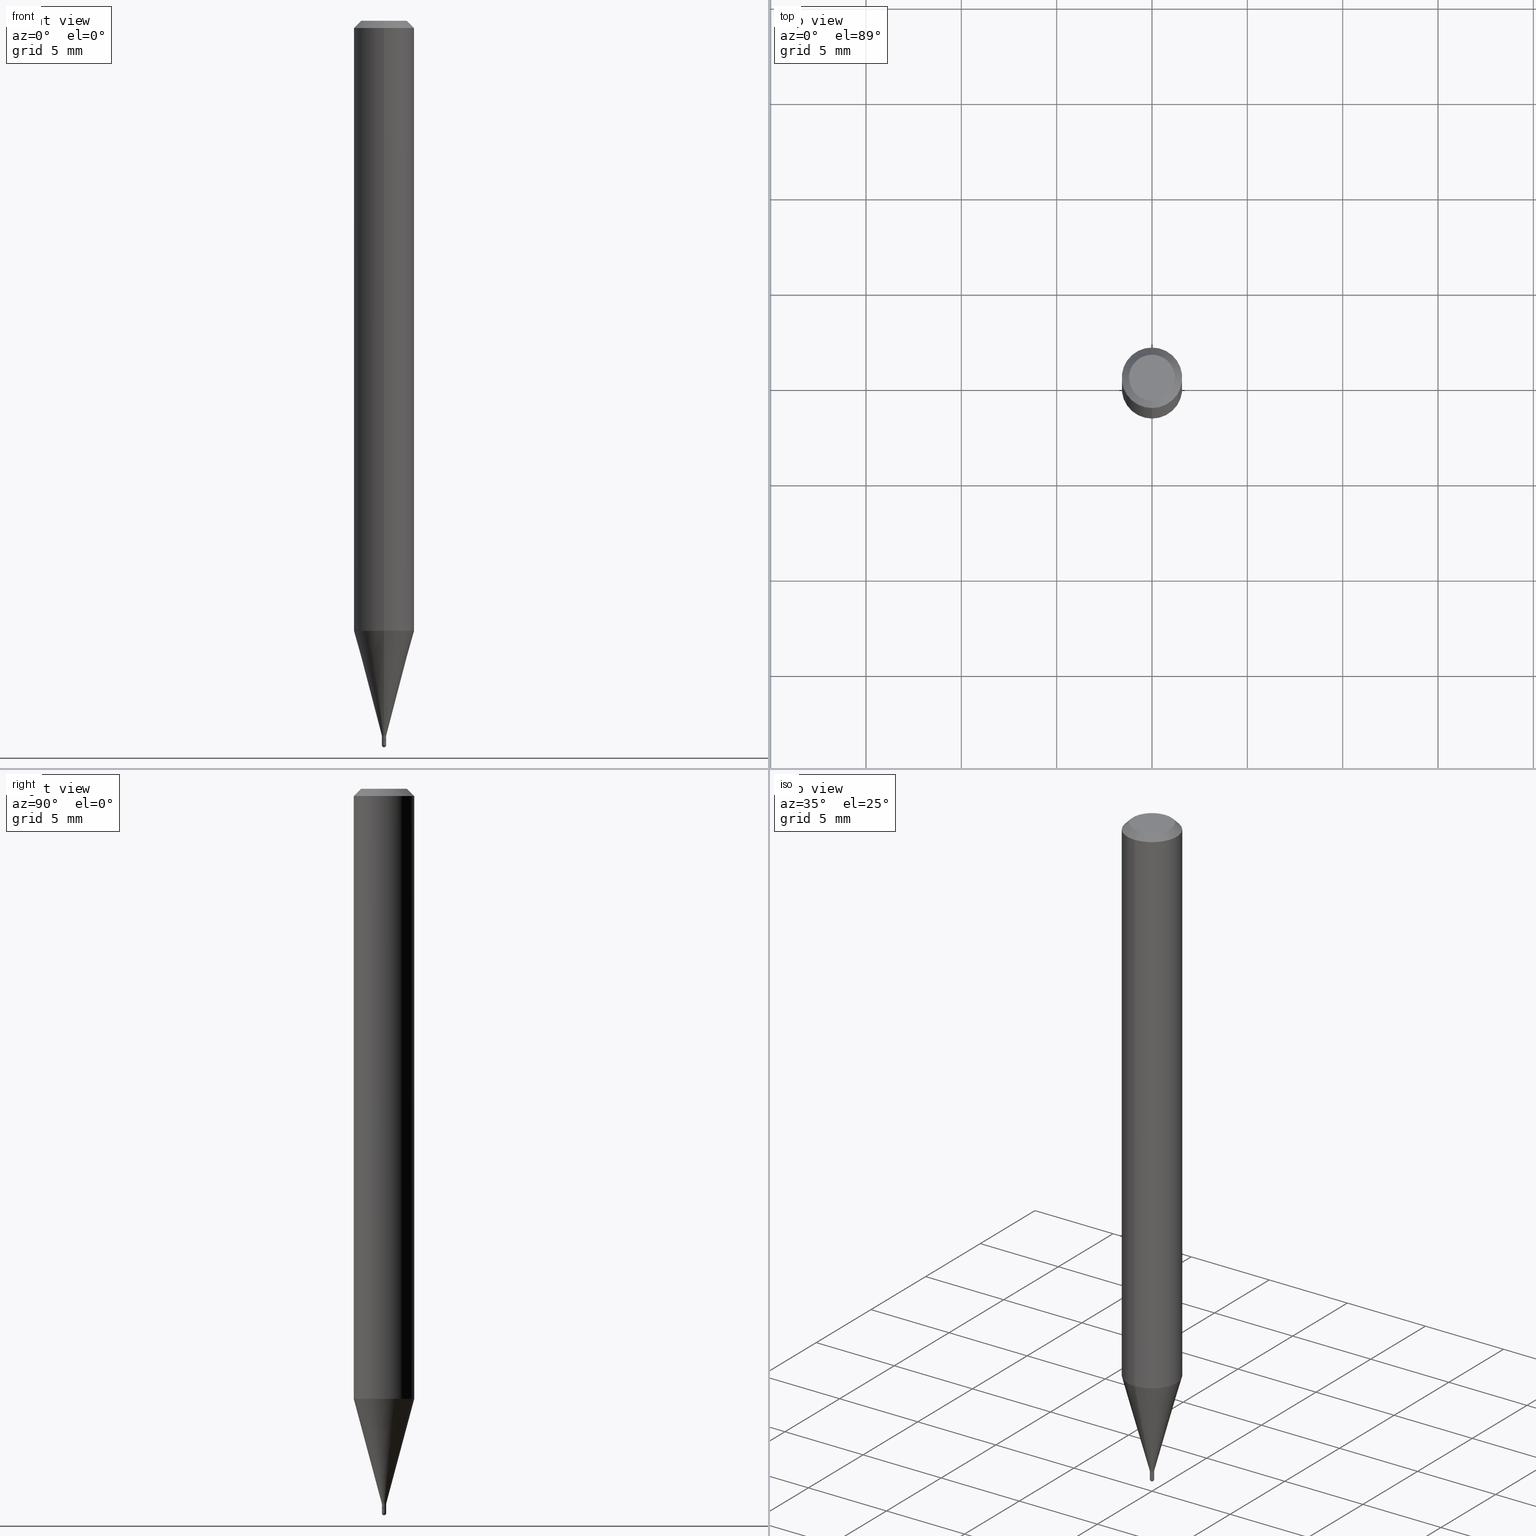
[diagram: canonical four-view strip — front | top / right | iso, engineering-drawing reading convention]
A machine part, canonical four-view strip (front | top / right | iso — engineering-drawing reading convention). The complete STEP part file that produces these views, byte-faithful:
ISO-10303-21;
HEADER;
FILE_DESCRIPTION (( 'STEP AP203' ),
    '1' );
FILE_NAME ('03033.STEP',
    '2024-03-08T18:01:57',
    ( '' ),
    ( '' ),
    'SwSTEP 2.0',
    'SolidWorks 2023',
    '' );
FILE_SCHEMA (( 'CONFIG_CONTROL_DESIGN' ));
ENDSEC;

DATA;
#1 = CIRCLE ( 'NONE', #16, 0.04749999999999999362 ) ;
#2 = APPROVAL_ROLE ( '' ) ;
#3 = FACE_OUTER_BOUND ( 'NONE', #34, .T. ) ;
#4 = COORDINATED_UNIVERSAL_TIME_OFFSET ( 5, 0, .BEHIND. ) ;
#5 = DIRECTION ( 'NONE',  ( 1.000000000000000000, -6.982962677686265922E-15, 4.883557194083112340E-29 ) ) ;
#6 = DIRECTION ( 'NONE',  ( -2.445468806185136597E-29, 3.491481338843145583E-15, 1.000000000000000000 ) ) ;
#7 = ORIENTED_EDGE ( 'NONE', *, *, #348, .T. ) ;
#8 = AXIS2_PLACEMENT_3D ( 'NONE', #317, #271, #91 ) ;
#9 = CC_DESIGN_PERSON_AND_ORGANIZATION_ASSIGNMENT ( #228, #263, ( #141 ) ) ;
#10 = ORGANIZATION ( 'UNSPECIFIED', 'UNSPECIFIED', '' ) ;
#11 = FACE_OUTER_BOUND ( 'NONE', #412, .T. ) ;
#12 = CARTESIAN_POINT ( 'NONE',  ( 0.000000000000000000, 0.000000000000000000, 0.000000000000000000 ) ) ;
#13 = EDGE_CURVE ( 'NONE', #257, #249, #287, .T. ) ;
#14 = CIRCLE ( 'NONE', #487, 0.004499999999999999660 ) ;
#15 = DIRECTION ( 'NONE',  ( 1.839019923739601499E-15, 0.2588190451025251249, 0.9659258262890670910 ) ) ;
#16 = AXIS2_PLACEMENT_3D ( 'NONE', #61, #449, #178 ) ;
#17 = LOCAL_TIME ( 13, 1, 57.00000000000000000, #195 ) ;
#18 = EDGE_CURVE ( 'NONE', #341, #297, #497, .T. ) ;
#19 = CARTESIAN_POINT ( 'NONE',  ( -4.364351673553608052E-16, -0.06250000000000439926, -1.259541053161005397 ) ) ;
#20 = ORIENTED_EDGE ( 'NONE', *, *, #70, .F. ) ;
#21 = DIRECTION ( 'NONE',  ( -2.445480569901482544E-29, 3.491464492531789239E-15, 1.000000000000000000 ) ) ;
#22 = ADVANCED_FACE ( 'NONE', ( #42 ), #78, .T. ) ;
#23 = VERTEX_POINT ( 'NONE', #504 ) ;
#24 = DIRECTION ( 'NONE',  ( -2.445480569901482544E-29, 3.491464492531789239E-15, 1.000000000000000000 ) ) ;
#25 = CC_DESIGN_DATE_AND_TIME_ASSIGNMENT ( #225, #390, ( #258 ) ) ;
#26 = ORIENTED_EDGE ( 'NONE', *, *, #89, .F. ) ;
#27 = CIRCLE ( 'NONE', #445, 0.004499999999999999660 ) ;
#28 = CARTESIAN_POINT ( 'NONE',  ( 0.004499999999999999660, -5.219764601570503141E-15, -1.486000000000000210 ) ) ;
#29 = VERTEX_POINT ( 'NONE', #231 ) ;
#30 = DIRECTION ( 'NONE',  ( 6.982962677686265922E-15, 1.000000000000000000, -3.491464492531789634E-15 ) ) ;
#31 = VERTEX_POINT ( 'NONE', #386 ) ;
#32 = EDGE_CURVE ( 'NONE', #257, #297, #475, .T. ) ;
#33 = CARTESIAN_POINT ( 'NONE',  ( 0.004499999999999999660, -3.142333204958819823E-17, 2.194279549108170704E-31 ) ) ;
#34 = EDGE_LOOP ( 'NONE', ( #219, #304, #84, #183 ) ) ;
#35 = CIRCLE ( 'NONE', #8, 0.004000000000000000083 ) ;
#36 = VECTOR ( 'NONE', #246, 39.37007874015748143 ) ;
#37 = EDGE_CURVE ( 'NONE', #29, #186, #155, .T. ) ;
#38 = PERSON_AND_ORGANIZATION ( #194, #10 ) ;
#39 = CARTESIAN_POINT ( 'NONE',  ( 3.668220854852165434E-31, -5.237196738797599944E-17, -0.01499999999999976179 ) ) ;
#40 = PLANE ( 'NONE',  #235 ) ;
#41 = EDGE_CURVE ( 'NONE', #23, #254, #153, .T. ) ;
#42 = FACE_OUTER_BOUND ( 'NONE', #295, .T. ) ;
#43 = DATE_AND_TIME ( #46, #483 ) ;
#44 = CARTESIAN_POINT ( 'NONE',  ( 4.440892098500935790E-16, 0.06249999999999995143, -0.01499999999999997863 ) ) ;
#45 = EDGE_CURVE ( 'NONE', #455, #117, #14, .T. ) ;
#46 = CALENDAR_DATE ( 2024, 8, 3 ) ;
#47 = DIRECTION ( 'NONE',  ( 1.000000000000000000, -6.982962677686225690E-15, 0.000000000000000000 ) ) ;
#48 = ORIENTED_EDGE ( 'NONE', *, *, #41, .F. ) ;
#49 = EDGE_CURVE ( 'NONE', #254, #106, #261, .T. ) ;
#50 = DATE_AND_TIME ( #366, #58 ) ;
#51 = DIRECTION ( 'NONE',  ( -6.982962677686265133E-15, -1.000000000000000000, 3.491464492531789239E-15 ) ) ;
#52 = VERTEX_POINT ( 'NONE', #196 ) ;
#53 = ORIENTED_EDGE ( 'NONE', *, *, #353, .F. ) ;
#54 = COORDINATED_UNIVERSAL_TIME_OFFSET ( 5, 0, .BEHIND. ) ;
#55 = CARTESIAN_POINT ( 'NONE',  ( 3.019806626984031964E-17, 0.003999999999994811525, -1.486000000000000210 ) ) ;
#56 = VECTOR ( 'NONE', #282, 39.37007874015748143 ) ;
#57 = AXIS2_PLACEMENT_3D ( 'NONE', #466, #385, #315 ) ;
#58 = LOCAL_TIME ( 13, 1, 57.00000000000000000, #54 ) ;
#59 = CARTESIAN_POINT ( 'NONE',  ( -0.004499999999999999660, -5.172951382771215824E-15, -1.486000000000000210 ) ) ;
#60 = LINE ( 'NONE', #416, #36 ) ;
#61 = CARTESIAN_POINT ( 'NONE',  ( -5.856628655322691539E-45, 8.361632984402382605E-31, 2.394878424880974857E-16 ) ) ;
#62 = ORIENTED_EDGE ( 'NONE', *, *, #82, .F. ) ;
#63 = ADVANCED_FACE ( 'NONE', ( #472 ), #277, .T. ) ;
#64 = AXIS2_PLACEMENT_3D ( 'NONE', #356, #469, #313 ) ;
#65 = CARTESIAN_POINT ( 'NONE',  ( 3.668220854852165434E-31, -5.237196738797599944E-17, -0.01499999999999976179 ) ) ;
#66 = AXIS2_PLACEMENT_3D ( 'NONE', #409, #216, #459 ) ;
#67 = EDGE_LOOP ( 'NONE', ( #354, #451, #285, #99, #217 ) ) ;
#68 = CYLINDRICAL_SURFACE ( 'NONE', #87, 0.06250000000000000000 ) ;
#69 = ORIENTED_EDGE ( 'NONE', *, *, #502, .T. ) ;
#70 = EDGE_CURVE ( 'NONE', #376, #106, #424, .T. ) ;
#71 = CARTESIAN_POINT ( 'NONE',  ( 3.633984126873604079E-29, -5.188316235902239695E-15, -1.486000000000000210 ) ) ;
#72 = ORIENTED_EDGE ( 'NONE', *, *, #367, .T. ) ;
#73 = AXIS2_PLACEMENT_3D ( 'NONE', #294, #494, #248 ) ;
#74 = ORIENTED_EDGE ( 'NONE', *, *, #345, .T. ) ;
#75 = DIRECTION ( 'NONE',  ( -6.982962677686265922E-15, -1.000000000000000000, 0.000000000000000000 ) ) ;
#76 = ORIENTED_EDGE ( 'NONE', *, *, #32, .T. ) ;
#77 = ADVANCED_FACE ( 'NONE', ( #510 ), #158, .T. ) ;
#78 = CYLINDRICAL_SURFACE ( 'NONE', #170, 0.004499999999999999660 ) ;
#79 = CALENDAR_DATE ( 2024, 8, 3 ) ;
#80 = CARTESIAN_POINT ( 'NONE',  ( 3.609529321174588321E-29, -5.153401590976920012E-15, -1.475999999999999979 ) ) ;
#81 = CONICAL_SURFACE ( 'NONE', #73, 0.004000000000000000083, 0.7853981633974739252 ) ;
#82 = EDGE_CURVE ( 'NONE', #52, #134, #128, .T. ) ;
#83 = DIRECTION ( 'NONE',  ( -2.445480569901482544E-29, 3.491464492531789634E-15, 1.000000000000000000 ) ) ;
#84 = ORIENTED_EDGE ( 'NONE', *, *, #470, .F. ) ;
#85 = FACE_OUTER_BOUND ( 'NONE', #365, .T. ) ;
#86 = CLOSED_SHELL ( 'NONE', ( #238, #406, #240, #114, #456, #135, #278, #63, #450, #336, #442, #293 ) ) ;
#87 = AXIS2_PLACEMENT_3D ( 'NONE', #105, #496, #146 ) ;
#88 = DIRECTION ( 'NONE',  ( -2.445480569901482544E-29, 3.491464492531789239E-15, 1.000000000000000000 ) ) ;
#89 = EDGE_CURVE ( 'NONE', #159, #221, #35, .T. ) ;
#90 = ORIENTED_EDGE ( 'NONE', *, *, #434, .F. ) ;
#91 = DIRECTION ( 'NONE',  ( -6.982962677686265133E-15, -1.000000000000000000, 0.000000000000000000 ) ) ;
#92 = LINE ( 'NONE', #169, #163 ) ;
#93 = AXIS2_PLACEMENT_3D ( 'NONE', #485, #241, #127 ) ;
#94 = VECTOR ( 'NONE', #307, 39.37007874015748143 ) ;
#95 = DIRECTION ( 'NONE',  ( -4.851104656540964275E-15, -0.7071067811865500152, -0.7071067811865450192 ) ) ;
#96 = DIRECTION ( 'NONE',  ( -2.445468806185136597E-29, 3.491481338843145583E-15, 1.000000000000000000 ) ) ;
#97 = ORIENTED_EDGE ( 'NONE', *, *, #49, .F. ) ;
#98 = FACE_OUTER_BOUND ( 'NONE', #67, .T. ) ;
#99 = ORIENTED_EDGE ( 'NONE', *, *, #502, .F. ) ;
#100 = VECTOR ( 'NONE', #83, 39.37007874015748143 ) ;
#101 = DIRECTION ( 'NONE',  ( -6.982962677686265922E-15, -1.000000000000000000, 4.370956789862821150E-15 ) ) ;
#102 = CIRCLE ( 'NONE', #389, 0.004499999999999999660 ) ;
#103 = ORIENTED_EDGE ( 'NONE', *, *, #427, .T. ) ;
#104 = ADVANCED_FACE ( 'NONE', ( #11 ), #203, .T. ) ;
#105 = CARTESIAN_POINT ( 'NONE',  ( 0.000000000000000000, 0.000000000000000000, 0.000000000000000000 ) ) ;
#106 = VERTEX_POINT ( 'NONE', #486 ) ;
#107 = DIRECTION ( 'NONE',  ( -6.982962677686265922E-15, -1.000000000000000000, 3.491464492531789634E-15 ) ) ;
#108 = ORIENTED_EDGE ( 'NONE', *, *, #110, .F. ) ;
#109 = DIRECTION ( 'NONE',  ( 0.000000000000000000, 0.000000000000000000, 1.000000000000000000 ) ) ;
#110 = EDGE_CURVE ( 'NONE', #249, #341, #205, .T. ) ;
#111 = ORIENTED_EDGE ( 'NONE', *, *, #45, .T. ) ;
#112 = SECURITY_CLASSIFICATION ( '', '', #283 ) ;
#113 = LENGTH_MEASURE_WITH_UNIT ( LENGTH_MEASURE( 0.02539999999999999897 ), #223 );
#114 = ADVANCED_FACE ( 'NONE', ( #321 ), #327, .T. ) ;
#115 = DIRECTION ( 'NONE',  ( 2.445480569901482544E-29, -3.491464492531789239E-15, -1.000000000000000000 ) ) ;
#116 = LINE ( 'NONE', #33, #94 ) ;
#117 = VERTEX_POINT ( 'NONE', #59 ) ;
#118 = CARTESIAN_POINT ( 'NONE',  ( 4.440892098500625669E-16, 0.06250000000000000000, -2.182165307832368028E-16 ) ) ;
#119 = CIRCLE ( 'NONE', #316, 0.004499999999999923332 ) ;
#120 = APPROVAL ( #422, 'UNSPECIFIED' ) ;
#121 = APPROVAL_PERSON_ORGANIZATION ( #323, #160, #2 ) ;
#122 = APPLICATION_CONTEXT ( 'configuration controlled 3d designs of mechanical parts and assemblies' ) ;
#123 = PRODUCT_DEFINITION_SHAPE ( 'NONE', 'NONE',  #258 ) ;
#124 = DIRECTION ( 'NONE',  ( -6.982962677686265922E-15, -1.000000000000000000, 0.000000000000000000 ) ) ;
#125 = APPROVAL_STATUS ( 'not_yet_approved' ) ;
#126 = CARTESIAN_POINT ( 'NONE',  ( 3.197442310924042993E-17, 0.004499999999994687069, -1.495500000000000496 ) ) ;
#127 = DIRECTION ( 'NONE',  ( -6.982962677686265922E-15, -1.000000000000000000, 0.000000000000000000 ) ) ;
#128 = CIRCLE ( 'NONE', #251, 0.004499999999999819249 ) ;
#129 = VECTOR ( 'NONE', #377, 39.37007874015748143 ) ;
#130 = DIRECTION ( 'NONE',  ( -2.445468806185136597E-29, 3.491481338843145583E-15, 1.000000000000000000 ) ) ;
#131 = ORIENTED_EDGE ( 'NONE', *, *, #438, .T. ) ;
#132 = DIMENSIONAL_EXPONENTS ( 1.000000000000000000, 0.000000000000000000, 0.000000000000000000, 0.000000000000000000, 0.000000000000000000, 0.000000000000000000, 0.000000000000000000 ) ;
#133 = CARTESIAN_POINT ( 'NONE',  ( 3.657198599649872484E-29, -5.221510342239925433E-15, -1.495500000000000496 ) ) ;
#134 = VERTEX_POINT ( 'NONE', #126 ) ;
#135 = ADVANCED_FACE ( 'NONE', ( #85 ), #242, .T. ) ;
#136 = CARTESIAN_POINT ( 'NONE',  ( 3.142333204962453513E-17, 0.004499999999994811102, -1.486000000000000210 ) ) ;
#137 = ORIENTED_EDGE ( 'NONE', *, *, #298, .T. ) ;
#138 = AXIS2_PLACEMENT_3D ( 'NONE', #480, #274, #47 ) ;
#139 = LINE ( 'NONE', #291, #129 ) ;
#140 = ORIENTED_EDGE ( 'NONE', *, *, #302, .F. ) ;
#141 = PRODUCT ( '03033', '03033', '', ( #266 ) ) ;
#142 = FACE_OUTER_BOUND ( 'NONE', #419, .T. ) ;
#143 = FACE_OUTER_BOUND ( 'NONE', #189, .T. ) ;
#144 = CC_DESIGN_PERSON_AND_ORGANIZATION_ASSIGNMENT ( #402, #236, ( #213 ) ) ;
#145 = VERTEX_POINT ( 'NONE', #207 ) ;
#146 = DIRECTION ( 'NONE',  ( -6.982962677686265922E-15, -1.000000000000000000, 3.491464492531788845E-15 ) ) ;
#147 = AXIS2_PLACEMENT_3D ( 'NONE', #12, #149, #300 ) ;
#148 = ORIENTED_EDGE ( 'NONE', *, *, #255, .F. ) ;
#149 = DIRECTION ( 'NONE',  ( -2.445480569901482544E-29, 3.491464492531789239E-15, 1.000000000000000000 ) ) ;
#150 = ORIENTED_EDGE ( 'NONE', *, *, #82, .T. ) ;
#151 = EDGE_CURVE ( 'NONE', #159, #257, #92, .T. ) ;
#152 = APPLICATION_PROTOCOL_DEFINITION ( 'international standard', 'config_control_design', 1994, #197 ) ;
#153 = LINE ( 'NONE', #118, #369 ) ;
#154 = FACE_OUTER_BOUND ( 'NONE', #267, .T. ) ;
#155 = CIRCLE ( 'NONE', #420, 0.04749999999999999362 ) ;
#156 = DIRECTION ( 'NONE',  ( -2.445480569901482544E-29, 3.491464492531789239E-15, 1.000000000000000000 ) ) ;
#157 = APPROVAL_ROLE ( '' ) ;
#158 = SPHERICAL_SURFACE ( 'NONE', #64, 0.004499999999999819249 ) ;
#159 = VERTEX_POINT ( 'NONE', #368 ) ;
#160 = APPROVAL ( #125, 'UNSPECIFIED' ) ;
#161 = CARTESIAN_POINT ( 'NONE',  ( 3.609529321174588321E-29, -5.153401590976920012E-15, -1.475999999999999979 ) ) ;
#162 = DIRECTION ( 'NONE',  ( 7.105427357601000281E-15, 1.000000000000000000, 0.000000000000000000 ) ) ;
#163 = VECTOR ( 'NONE', #232, 39.37007874015748143 ) ;
#164 = APPROVAL_ROLE ( '' ) ;
#165 = CARTESIAN_POINT ( 'NONE',  ( 3.633984126873604079E-29, -5.188316235902239695E-15, -1.486000000000000210 ) ) ;
#166 = EDGE_CURVE ( 'NONE', #281, #31, #252, .T. ) ;
#167 = COORDINATED_UNIVERSAL_TIME_OFFSET ( 5, 0, .BEHIND. ) ;
#168 = DIRECTION ( 'NONE',  ( -6.982962677686265133E-15, -1.000000000000000000, 0.000000000000000000 ) ) ;
#169 = CARTESIAN_POINT ( 'NONE',  ( -2.793185071070872476E-17, -0.004000000000005187774, -1.486000000000000210 ) ) ;
#170 = AXIS2_PLACEMENT_3D ( 'NONE', #227, #309, #190 ) ;
#171 = EDGE_LOOP ( 'NONE', ( #131, #408, #334, #20 ) ) ;
#172 = CIRCLE ( 'NONE', #499, 0.004499999999999924200 ) ;
#173 = CARTESIAN_POINT ( 'NONE',  ( -3.773273898774340269E-16, -0.04749999999999999362, 4.053324058833574509E-16 ) ) ;
#174 = CARTESIAN_POINT ( 'NONE',  ( 0.000000000000000000, 0.000000000000000000, 0.000000000000000000 ) ) ;
#175 = CC_DESIGN_PERSON_AND_ORGANIZATION_ASSIGNMENT ( #275, #358, ( #213 ) ) ;
#176 = CARTESIAN_POINT ( 'NONE',  ( -3.142333204955156550E-17, -0.004500000000005076328, -1.475999999999999979 ) ) ;
#177 = AXIS2_PLACEMENT_3D ( 'NONE', #136, #443, #199 ) ;
#178 = DIRECTION ( 'NONE',  ( -6.982962677686266711E-15, -1.000000000000000000, 3.491464492531789634E-15 ) ) ;
#179 = ORIENTED_EDGE ( 'NONE', *, *, #151, .F. ) ;
#180 = CARTESIAN_POINT ( 'NONE',  ( 2.380318164796668072E-16, 0.004499999999994770336, -1.475999999999999979 ) ) ;
#181 = ORIENTED_EDGE ( 'NONE', *, *, #18, .T. ) ;
#182 = DIRECTION ( 'NONE',  ( -6.982962677686265922E-15, -1.000000000000000000, 3.483106191921935554E-15 ) ) ;
#183 = ORIENTED_EDGE ( 'NONE', *, *, #32, .F. ) ;
#184 = DIRECTION ( 'NONE',  ( 1.000000000000000000, -6.982962677686225690E-15, 0.000000000000000000 ) ) ;
#185 = AXIS2_PLACEMENT_3D ( 'NONE', #188, #387, #383 ) ;
#186 = VERTEX_POINT ( 'NONE', #173 ) ;
#187 = ORIENTED_EDGE ( 'NONE', *, *, #367, .F. ) ;
#188 = CARTESIAN_POINT ( 'NONE',  ( 3.609529321174588321E-29, -5.153401590976920012E-15, -1.475999999999999979 ) ) ;
#189 = EDGE_LOOP ( 'NONE', ( #48, #260, #343, #97 ) ) ;
#190 = DIRECTION ( 'NONE',  ( 1.000000000000000000, -6.982962677686266711E-15, 4.876176775795935232E-29 ) ) ;
#191 = CIRCLE ( 'NONE', #262, 0.004000000000000000083 ) ;
#192 = CARTESIAN_POINT ( 'NONE',  ( -4.364351673553916201E-16, -0.06250000000000000000, 2.182165307832368028E-16 ) ) ;
#193 = DIRECTION ( 'NONE',  ( -2.445480569901482544E-29, 3.491464492531789634E-15, 1.000000000000000000 ) ) ;
#194 = PERSON ( 'UNSPECIFIED', 'UNSPECIFIED', 'UNSPECIFIED', ('UNSPECIFIED'), ('UNSPECIFIED'), ('UNSPECIFIED') ) ;
#195 = COORDINATED_UNIVERSAL_TIME_OFFSET ( 5, 0, .BEHIND. ) ;
#196 = CARTESIAN_POINT ( 'NONE',  ( 3.667625972032509691E-29, -5.238048644854142216E-15, -1.500000000000000222 ) ) ;
#197 = APPLICATION_CONTEXT ( 'configuration controlled 3d designs of mechanical parts and assemblies' ) ;
#198 = DATE_TIME_ROLE ( 'classification_date' ) ;
#199 = DIRECTION ( 'NONE',  ( -1.000000000000000000, 6.982962677686265922E-15, -4.876176775795935793E-29 ) ) ;
#200 = EDGE_CURVE ( 'NONE', #145, #281, #457, .T. ) ;
#201 = AXIS2_PLACEMENT_3D ( 'NONE', #418, #109, #430 ) ;
#202 = CARTESIAN_POINT ( 'NONE',  ( -4.287811248607203282E-16, -0.06250000000000005551, -0.01499999999999954321 ) ) ;
#203 = SPHERICAL_SURFACE ( 'NONE', #428, 0.004499999999999819249 ) ;
#204 = EDGE_CURVE ( 'NONE', #186, #106, #440, .T. ) ;
#205 = LINE ( 'NONE', #403, #56 ) ;
#206 = ADVANCED_FACE ( 'NONE', ( #362 ), #284, .F. ) ;
#207 = CARTESIAN_POINT ( 'NONE',  ( -0.004499999999999999660, -5.172951382771215824E-15, -1.495500000000000496 ) ) ;
#208 = DIRECTION ( 'NONE',  ( -1.000000000000000000, 6.982962677686265922E-15, -4.883557194083112340E-29 ) ) ;
#209 = DIRECTION ( 'NONE',  ( -6.982962677686265922E-15, -1.000000000000000000, 0.000000000000000000 ) ) ;
#210 = ORIENTED_EDGE ( 'NONE', *, *, #37, .F. ) ;
#211 = AXIS2_PLACEMENT_3D ( 'NONE', #394, #433, #124 ) ;
#212 = VECTOR ( 'NONE', #401, 39.37007874015748854 ) ;
#213 = PRODUCT_DEFINITION_FORMATION_WITH_SPECIFIED_SOURCE ( 'ANY', '', #141, .NOT_KNOWN. ) ;
#214 = DIRECTION ( 'NONE',  ( -2.445480569901482544E-29, 3.491464492531789239E-15, 1.000000000000000000 ) ) ;
#215 = ORIENTED_EDGE ( 'NONE', *, *, #37, .T. ) ;
#216 = DIRECTION ( 'NONE',  ( -2.445468806185136597E-29, 3.491481338843145583E-15, 1.000000000000000000 ) ) ;
#217 = ORIENTED_EDGE ( 'NONE', *, *, #371, .T. ) ;
#218 = DIRECTION ( 'NONE',  ( -2.445480569901482544E-29, 3.491464492531789239E-15, 1.000000000000000000 ) ) ;
#219 = ORIENTED_EDGE ( 'NONE', *, *, #13, .T. ) ;
#220 = AXIS2_PLACEMENT_3D ( 'NONE', #65, #218, #182 ) ;
#221 = VERTEX_POINT ( 'NONE', #55 ) ;
#222 = EDGE_LOOP ( 'NONE', ( #108, #103, #76, #462 ) ) ;
#223 =( LENGTH_UNIT ( ) NAMED_UNIT ( * ) SI_UNIT ( $, .METRE. ) );
#224 = DIRECTION ( 'NONE',  ( -2.445480569901482544E-29, 3.491464492531789239E-15, 1.000000000000000000 ) ) ;
#225 = DATE_AND_TIME ( #79, #17 ) ;
#226 = AXIS2_PLACEMENT_3D ( 'NONE', #388, #305, #392 ) ;
#227 = CARTESIAN_POINT ( 'NONE',  ( 0.000000000000000000, 0.000000000000000000, 0.000000000000000000 ) ) ;
#228 = PERSON_AND_ORGANIZATION ( #194, #10 ) ;
#229 = CARTESIAN_POINT ( 'NONE',  ( 3.633966645991113741E-29, -5.188341269520915288E-15, -1.486000000000000210 ) ) ;
#230 = APPROVAL_DATE_TIME ( #320, #250 ) ;
#231 = CARTESIAN_POINT ( 'NONE',  ( 3.840629472727447874E-16, 0.04749999999999999362, 7.364327909283748346E-17 ) ) ;
#232 = DIRECTION ( 'NONE',  ( -4.937700262164674260E-15, -0.7071067811865632269, 0.7071067811865319186 ) ) ;
#233 = AXIS2_PLACEMENT_3D ( 'NONE', #80, #224, #464 ) ;
#234 = EDGE_CURVE ( 'NONE', #134, #145, #27, .T. ) ;
#235 = AXIS2_PLACEMENT_3D ( 'NONE', #312, #355, #30 ) ;
#236 = PERSON_AND_ORGANIZATION_ROLE ( 'creator' ) ;
#237 = CARTESIAN_POINT ( 'NONE',  ( -3.142333204955156550E-17, -0.004500000000005076328, -1.475999999999999979 ) ) ;
#238 = ADVANCED_FACE ( 'NONE', ( #3 ), #370, .T. ) ;
#239 = CARTESIAN_POINT ( 'NONE',  ( 0.000000000000000000, 0.000000000000000000, 0.000000000000000000 ) ) ;
#240 = ADVANCED_FACE ( 'NONE', ( #286 ), #482, .T. ) ;
#241 = DIRECTION ( 'NONE',  ( -2.445480569901482544E-29, 3.491464492531789239E-15, 1.000000000000000000 ) ) ;
#242 = CONICAL_SURFACE ( 'NONE', #93, 0.004499999999999923332, 0.2617993877991504625 ) ;
#243 = LOCAL_TIME ( 13, 1, 57.00000000000000000, #4 ) ;
#244 = DIRECTION ( 'NONE',  ( 6.982962677686265922E-15, 1.000000000000000000, -3.483106191921935554E-15 ) ) ;
#245 = EDGE_LOOP ( 'NONE', ( #380, #338, #137, #330 ) ) ;
#246 = DIRECTION ( 'NONE',  ( -2.445468806185136877E-29, 3.491481338843145188E-15, 1.000000000000000000 ) ) ;
#247 = EDGE_LOOP ( 'NONE', ( #215, #7 ) ) ;
#248 = DIRECTION ( 'NONE',  ( -6.982962677686265133E-15, -1.000000000000000000, 0.000000000000000000 ) ) ;
#249 = VERTEX_POINT ( 'NONE', #444 ) ;
#250 = APPROVAL ( #478, 'UNSPECIFIED' ) ;
#251 = AXIS2_PLACEMENT_3D ( 'NONE', #512, #511, #162 ) ;
#252 = CIRCLE ( 'NONE', #331, 0.004499999999999999660 ) ;
#253 = DIRECTION ( 'NONE',  ( 5.024295867788190974E-15, 0.7071067811865681119, 0.7071067811865270336 ) ) ;
#254 = VERTEX_POINT ( 'NONE', #44 ) ;
#255 = EDGE_CURVE ( 'NONE', #221, #159, #191, .T. ) ;
#256 = FACE_OUTER_BOUND ( 'NONE', #490, .T. ) ;
#257 = VERTEX_POINT ( 'NONE', #276 ) ;
#258 = PRODUCT_DEFINITION ( 'UNKNOWN', '', #213, #290 ) ;
#259 = DIRECTION ( 'NONE',  ( -2.445480569901482544E-29, 3.491464492531789239E-15, 1.000000000000000000 ) ) ;
#260 = ORIENTED_EDGE ( 'NONE', *, *, #353, .T. ) ;
#261 = CIRCLE ( 'NONE', #226, 0.06250000000000000000 ) ;
#262 = AXIS2_PLACEMENT_3D ( 'NONE', #165, #435, #168 ) ;
#263 = PERSON_AND_ORGANIZATION_ROLE ( 'design_owner' ) ;
#264 = DIRECTION ( 'NONE',  ( -2.445480569901482544E-29, 3.491464492531789634E-15, 1.000000000000000000 ) ) ;
#265 = DIRECTION ( 'NONE',  ( 6.982962677686265922E-15, 1.000000000000000000, -3.483106191921935554E-15 ) ) ;
#266 = MECHANICAL_CONTEXT ( 'NONE', #197, 'mechanical' ) ;
#267 = EDGE_LOOP ( 'NONE', ( #90, #495, #493, #344 ) ) ;
#268 = CC_DESIGN_PERSON_AND_ORGANIZATION_ASSIGNMENT ( #439, #398, ( #112 ) ) ;
#269 = AXIS2_PLACEMENT_3D ( 'NONE', #414, #21, #339 ) ;
#270 = ORIENTED_EDGE ( 'NONE', *, *, #200, .F. ) ;
#271 = DIRECTION ( 'NONE',  ( -2.445480569901482544E-29, 3.491464492531789239E-15, 1.000000000000000000 ) ) ;
#272 = APPROVAL_DATE_TIME ( #50, #160 ) ;
#273 = EDGE_CURVE ( 'NONE', #297, #376, #437, .T. ) ;
#274 = DIRECTION ( 'NONE',  ( -2.445468806185136597E-29, 3.491481338843145583E-15, 1.000000000000000000 ) ) ;
#275 = PERSON_AND_ORGANIZATION ( #194, #10 ) ;
#276 = CARTESIAN_POINT ( 'NONE',  ( -3.142333204955143607E-17, -0.004500000000005124901, -1.485500000000000265 ) ) ;
#277 = CONICAL_SURFACE ( 'NONE', #454, 0.06250000000000000000, 0.7853981633974483900 ) ;
#278 = ADVANCED_FACE ( 'NONE', ( #143 ), #68, .T. ) ;
#279 = AXIS2_PLACEMENT_3D ( 'NONE', #71, #461, #107 ) ;
#280 = LOCAL_TIME ( 13, 1, 57.00000000000000000, #509 ) ;
#281 = VERTEX_POINT ( 'NONE', #407 ) ;
#282 = DIRECTION ( 'NONE',  ( -2.445480569901482544E-29, 3.491464492531789634E-15, 1.000000000000000000 ) ) ;
#283 = SECURITY_CLASSIFICATION_LEVEL ( 'unclassified' ) ;
#284 = PLANE ( 'NONE',  #177 ) ;
#285 = ORIENTED_EDGE ( 'NONE', *, *, #45, .F. ) ;
#286 = FACE_OUTER_BOUND ( 'NONE', #245, .T. ) ;
#287 = CIRCLE ( 'NONE', #211, 0.004499999999999924200 ) ;
#288 = AXIS2_PLACEMENT_3D ( 'NONE', #488, #333, #492 ) ;
#289 = ORIENTED_EDGE ( 'NONE', *, *, #200, .T. ) ;
#290 = DESIGN_CONTEXT ( 'detailed design', #122, 'design' ) ;
#291 = CARTESIAN_POINT ( 'NONE',  ( 4.364351673553919652E-16, 0.06249999999999995143, -0.01499999999999997863 ) ) ;
#292 = ORIENTED_EDGE ( 'NONE', *, *, #319, .F. ) ;
#293 = ADVANCED_FACE ( 'NONE', ( #452 ), #373, .T. ) ;
#294 = CARTESIAN_POINT ( 'NONE',  ( 3.633984126873604079E-29, -5.188316235902239695E-15, -1.486000000000000210 ) ) ;
#295 = EDGE_LOOP ( 'NONE', ( #140, #289, #415, #69, #187 ) ) ;
#296 = CARTESIAN_POINT ( 'NONE',  ( 2.842170943044033877E-17, 0.003999999999994811525, -1.486000000000000210 ) ) ;
#297 = VERTEX_POINT ( 'NONE', #176 ) ;
#298 = EDGE_CURVE ( 'NONE', #106, #254, #508, .T. ) ;
#299 = CIRCLE ( 'NONE', #288, 0.004499999999999999660 ) ;
#300 = DIRECTION ( 'NONE',  ( -6.982962677686265133E-15, -1.000000000000000000, 3.491464492531789239E-15 ) ) ;
#301 = ORIENTED_EDGE ( 'NONE', *, *, #438, .F. ) ;
#302 = EDGE_CURVE ( 'NONE', #145, #117, #60, .T. ) ;
#303 = CARTESIAN_POINT ( 'NONE',  ( 3.656813774819742348E-29, -5.222061433299540145E-15, -1.495500000000000274 ) ) ;
#304 = ORIENTED_EDGE ( 'NONE', *, *, #110, .T. ) ;
#305 = DIRECTION ( 'NONE',  ( -2.445480569901482544E-29, 3.491464492531789239E-15, 1.000000000000000000 ) ) ;
#306 = CONICAL_SURFACE ( 'NONE', #57, 0.004000000000000000083, 0.7853981633974739252 ) ;
#307 = DIRECTION ( 'NONE',  ( -2.445468806185136877E-29, 3.491481338843145188E-15, 1.000000000000000000 ) ) ;
#308 = MANIFOLD_SOLID_BREP ( 'Body-Move/Copy2[2]', #86 ) ;
#309 = DIRECTION ( 'NONE',  ( -2.445468806185136597E-29, 3.491481338843145583E-15, 1.000000000000000000 ) ) ;
#310 = APPROVAL_DATE_TIME ( #393, #120 ) ;
#311 = CARTESIAN_POINT ( 'NONE',  ( -5.856628655322691539E-45, 8.361632984402382605E-31, 2.394878424880974857E-16 ) ) ;
#312 = CARTESIAN_POINT ( 'NONE',  ( 3.316907271900976096E-16, 0.04749999999999999362, -4.610064215121122239E-17 ) ) ;
#313 = DIRECTION ( 'NONE',  ( -6.982962677686265922E-15, -1.000000000000000000, 0.000000000000000000 ) ) ;
#314 = ADVANCED_FACE ( 'NONE', ( #98 ), #342, .T. ) ;
#315 = DIRECTION ( 'NONE',  ( -6.982962677686265133E-15, -1.000000000000000000, 0.000000000000000000 ) ) ;
#316 = AXIS2_PLACEMENT_3D ( 'NONE', #161, #259, #75 ) ;
#317 = CARTESIAN_POINT ( 'NONE',  ( 3.633984126873604079E-29, -5.188316235902239695E-15, -1.486000000000000210 ) ) ;
#318 = APPROVAL_PERSON_ORGANIZATION ( #38, #250, #164 ) ;
#319 = EDGE_CURVE ( 'NONE', #52, #281, #381, .T. ) ;
#320 = DATE_AND_TIME ( #361, #243 ) ;
#321 = FACE_OUTER_BOUND ( 'NONE', #171, .T. ) ;
#322 = DIRECTION ( 'NONE',  ( 1.000000000000000000, -6.982962677686225690E-15, 0.000000000000000000 ) ) ;
#323 = PERSON_AND_ORGANIZATION ( #194, #10 ) ;
#324 = CARTESIAN_POINT ( 'NONE',  ( 3.668220854852165434E-31, -5.237196738797599944E-17, -0.01499999999999976179 ) ) ;
#325 = AXIS2_PLACEMENT_3D ( 'NONE', #303, #208, #209 ) ;
#326 = ORIENTED_EDGE ( 'NONE', *, *, #319, .T. ) ;
#327 = CYLINDRICAL_SURFACE ( 'NONE', #349, 0.06250000000000000000 ) ;
#328 = DIRECTION ( 'NONE',  ( 2.445480569901482544E-29, -3.491464492531789239E-15, -1.000000000000000000 ) ) ;
#329 = CARTESIAN_POINT ( 'NONE',  ( 3.197442310924005399E-17, 0.004499999999994770336, -1.475999999999999979 ) ) ;
#330 = ORIENTED_EDGE ( 'NONE', *, *, #363, .F. ) ;
#331 = AXIS2_PLACEMENT_3D ( 'NONE', #133, #6, #322 ) ;
#332 = APPROVAL_PERSON_ORGANIZATION ( #350, #120, #157 ) ;
#333 = DIRECTION ( 'NONE',  ( -2.445468806185136597E-29, 3.491481338843145583E-15, 1.000000000000000000 ) ) ;
#334 = ORIENTED_EDGE ( 'NONE', *, *, #298, .F. ) ;
#335 = LINE ( 'NONE', #296, #421 ) ;
#336 = ADVANCED_FACE ( 'NONE', ( #256 ), #500, .F. ) ;
#337 = EDGE_LOOP ( 'NONE', ( #423, #74, #301, #448 ) ) ;
#338 = ORIENTED_EDGE ( 'NONE', *, *, #204, .T. ) ;
#339 = DIRECTION ( 'NONE',  ( -6.982962677686265922E-15, -1.000000000000000000, 4.370956789862821150E-15 ) ) ;
#340 = CC_DESIGN_PERSON_AND_ORGANIZATION_ASSIGNMENT ( #468, #425, ( #258 ) ) ;
#341 = VERTEX_POINT ( 'NONE', #180 ) ;
#342 = CYLINDRICAL_SURFACE ( 'NONE', #66, 0.004499999999999999660 ) ;
#343 = ORIENTED_EDGE ( 'NONE', *, *, #70, .T. ) ;
#344 = ORIENTED_EDGE ( 'NONE', *, *, #427, .F. ) ;
#345 = EDGE_CURVE ( 'NONE', #341, #23, #379, .T. ) ;
#346 = APPLICATION_PROTOCOL_DEFINITION ( 'international standard', 'config_control_design', 1994, #122 ) ;
#347 = ORIENTED_EDGE ( 'NONE', *, *, #363, .T. ) ;
#348 = EDGE_CURVE ( 'NONE', #186, #29, #1, .T. ) ;
#349 = AXIS2_PLACEMENT_3D ( 'NONE', #239, #476, #484 ) ;
#350 = PERSON_AND_ORGANIZATION ( #194, #10 ) ;
#351 = DIRECTION ( 'NONE',  ( -6.982962677686266711E-15, -1.000000000000000000, 3.491464492531789634E-15 ) ) ;
#352 = FACE_OUTER_BOUND ( 'NONE', #247, .T. ) ;
#353 = EDGE_CURVE ( 'NONE', #23, #376, #473, .T. ) ;
#354 = ORIENTED_EDGE ( 'NONE', *, *, #234, .T. ) ;
#355 = DIRECTION ( 'NONE',  ( 2.445480569901481703E-29, -3.491464492531789634E-15, -1.000000000000000000 ) ) ;
#356 = CARTESIAN_POINT ( 'NONE',  ( 3.656813774819742348E-29, -5.222061433299540145E-15, -1.495500000000000274 ) ) ;
#357 = CC_DESIGN_DATE_AND_TIME_ASSIGNMENT ( #43, #198, ( #112 ) ) ;
#358 = PERSON_AND_ORGANIZATION_ROLE ( 'design_supplier' ) ;
#359 = AXIS2_PLACEMENT_3D ( 'NONE', #174, #88, #51 ) ;
#360 = DIRECTION ( 'NONE',  ( 1.000000000000000000, -6.982962677686225690E-15, 0.000000000000000000 ) ) ;
#361 = CALENDAR_DATE ( 2024, 8, 3 ) ;
#362 = FACE_OUTER_BOUND ( 'NONE', #417, .T. ) ;
#363 = EDGE_CURVE ( 'NONE', #29, #254, #139, .T. ) ;
#364 = DIRECTION ( 'NONE',  ( -6.982962677686265922E-15, -1.000000000000000000, 0.000000000000000000 ) ) ;
#365 = EDGE_LOOP ( 'NONE', ( #378, #181, #384, #53 ) ) ;
#366 = CALENDAR_DATE ( 2024, 8, 3 ) ;
#367 = EDGE_CURVE ( 'NONE', #117, #455, #102, .T. ) ;
#368 = CARTESIAN_POINT ( 'NONE',  ( -2.793185071070872476E-17, -0.004000000000005187774, -1.486000000000000210 ) ) ;
#369 = VECTOR ( 'NONE', #264, 39.37007874015748143 ) ;
#370 = CYLINDRICAL_SURFACE ( 'NONE', #359, 0.004499999999999924200 ) ;
#371 = EDGE_CURVE ( 'NONE', #31, #134, #299, .T. ) ;
#372 = CARTESIAN_POINT ( 'NONE',  ( 3.633966645991113741E-29, -5.188341269520915288E-15, -1.486000000000000210 ) ) ;
#373 = CYLINDRICAL_SURFACE ( 'NONE', #147, 0.004499999999999924200 ) ;
#374 = ORIENTED_EDGE ( 'NONE', *, *, #234, .F. ) ;
#375 = DIRECTION ( 'NONE',  ( -6.982962677686265922E-15, -1.000000000000000000, 0.000000000000000000 ) ) ;
#376 = VERTEX_POINT ( 'NONE', #19 ) ;
#377 = DIRECTION ( 'NONE',  ( 4.937700262164548042E-15, 0.7071067811865451302, -0.7071067811865499042 ) ) ;
#378 = ORIENTED_EDGE ( 'NONE', *, *, #345, .F. ) ;
#379 = LINE ( 'NONE', #329, #429 ) ;
#380 = ORIENTED_EDGE ( 'NONE', *, *, #348, .F. ) ;
#381 = CIRCLE ( 'NONE', #325, 0.004499999999999819249 ) ;
#382 =( GEOMETRIC_REPRESENTATION_CONTEXT ( 3 ) GLOBAL_UNCERTAINTY_ASSIGNED_CONTEXT ( ( #432 ) ) GLOBAL_UNIT_ASSIGNED_CONTEXT ( ( #503, #471, #463 ) ) REPRESENTATION_CONTEXT ( 'NONE', 'WORKASPACE' ) );
#383 = DIRECTION ( 'NONE',  ( -6.982962677686265922E-15, -1.000000000000000000, 0.000000000000000000 ) ) ;
#384 = ORIENTED_EDGE ( 'NONE', *, *, #273, .T. ) ;
#385 = DIRECTION ( 'NONE',  ( -2.445480569901482544E-29, 3.491464492531789239E-15, 1.000000000000000000 ) ) ;
#386 = CARTESIAN_POINT ( 'NONE',  ( 0.004499999999999999660, -5.236349137930008608E-15, -1.495500000000000496 ) ) ;
#387 = DIRECTION ( 'NONE',  ( -2.445480569901482544E-29, 3.491464492531789239E-15, 1.000000000000000000 ) ) ;
#388 = CARTESIAN_POINT ( 'NONE',  ( 3.668220854852165434E-31, -5.237196738797599944E-17, -0.01499999999999976179 ) ) ;
#389 = AXIS2_PLACEMENT_3D ( 'NONE', #372, #96, #184 ) ;
#390 = DATE_TIME_ROLE ( 'creation_date' ) ;
#391 = CC_DESIGN_SECURITY_CLASSIFICATION ( #112, ( #213 ) ) ;
#392 = DIRECTION ( 'NONE',  ( -6.982962677686265922E-15, -1.000000000000000000, 3.483106191921935554E-15 ) ) ;
#393 = DATE_AND_TIME ( #505, #280 ) ;
#394 = CARTESIAN_POINT ( 'NONE',  ( 3.632761386588653460E-29, -5.186570503655974381E-15, -1.485500000000000265 ) ) ;
#395 = ADVANCED_BREP_SHAPE_REPRESENTATION ( '03033', ( #491, #308, #201 ), #382 ) ;
#396 = DIRECTION ( 'NONE',  ( -2.445468806185136597E-29, 3.491481338843145583E-15, 1.000000000000000000 ) ) ;
#397 = CLOSED_SHELL ( 'NONE', ( #314, #104, #206, #77, #22 ) ) ;
#398 = PERSON_AND_ORGANIZATION_ROLE ( 'classification_officer' ) ;
#399 = CC_DESIGN_APPROVAL ( #120, ( #258 ) ) ;
#400 = CARTESIAN_POINT ( 'NONE',  ( 3.657198599649872484E-29, -5.221510342239925433E-15, -1.495500000000000496 ) ) ;
#401 = DIRECTION ( 'NONE',  ( -1.807323732225331323E-15, -0.2588190451025183525, 0.9659258262890689783 ) ) ;
#402 = PERSON_AND_ORGANIZATION ( #194, #10 ) ;
#403 = CARTESIAN_POINT ( 'NONE',  ( 3.197442310920396361E-17, 0.004499999999999924200, -1.571159021639278689E-17 ) ) ;
#404 = CARTESIAN_POINT ( 'NONE',  ( 3.656813774819742348E-29, -5.222061433299540145E-15, -1.495500000000000274 ) ) ;
#405 = CONICAL_SURFACE ( 'NONE', #185, 0.004499999999999923332, 0.2617993877991504625 ) ;
#406 = ADVANCED_FACE ( 'NONE', ( #142 ), #81, .T. ) ;
#407 = CARTESIAN_POINT ( 'NONE',  ( -3.142333204955099234E-17, -0.004500000000005131839, -1.495500000000000496 ) ) ;
#408 = ORIENTED_EDGE ( 'NONE', *, *, #41, .T. ) ;
#409 = CARTESIAN_POINT ( 'NONE',  ( 0.000000000000000000, 0.000000000000000000, 0.000000000000000000 ) ) ;
#410 = ORIENTED_EDGE ( 'NONE', *, *, #166, .F. ) ;
#411 = CARTESIAN_POINT ( 'NONE',  ( 3.632761386588653460E-29, -5.186570503655974381E-15, -1.485500000000000265 ) ) ;
#412 = EDGE_LOOP ( 'NONE', ( #292, #150, #453, #410 ) ) ;
#413 = AXIS2_PLACEMENT_3D ( 'NONE', #324, #328, #244 ) ;
#414 = CARTESIAN_POINT ( 'NONE',  ( 3.080183172498490090E-29, -4.397642863997746383E-15, -1.259541053161005841 ) ) ;
#415 = ORIENTED_EDGE ( 'NONE', *, *, #166, .T. ) ;
#416 = CARTESIAN_POINT ( 'NONE',  ( -0.004499999999999999660, 3.197442310920450595E-17, -2.213520790614707297E-31 ) ) ;
#417 = EDGE_LOOP ( 'NONE', ( #111, #72 ) ) ;
#418 = CARTESIAN_POINT ( 'NONE',  ( 0.000000000000000000, 0.000000000000000000, 0.000000000000000000 ) ) ;
#419 = EDGE_LOOP ( 'NONE', ( #460, #477, #498, #179 ) ) ;
#420 = AXIS2_PLACEMENT_3D ( 'NONE', #311, #156, #351 ) ;
#421 = VECTOR ( 'NONE', #253, 39.37007874015748143 ) ;
#422 = APPROVAL_STATUS ( 'not_yet_approved' ) ;
#423 = ORIENTED_EDGE ( 'NONE', *, *, #470, .T. ) ;
#424 = LINE ( 'NONE', #192, #507 ) ;
#425 = PERSON_AND_ORGANIZATION_ROLE ( 'creator' ) ;
#426 = ORIENTED_EDGE ( 'NONE', *, *, #204, .F. ) ;
#427 = EDGE_CURVE ( 'NONE', #249, #257, #172, .T. ) ;
#428 = AXIS2_PLACEMENT_3D ( 'NONE', #404, #5, #364 ) ;
#429 = VECTOR ( 'NONE', #15, 39.37007874015748854 ) ;
#430 = DIRECTION ( 'NONE',  ( 1.000000000000000000, 0.000000000000000000, 0.000000000000000000 ) ) ;
#431 = CC_DESIGN_APPROVAL ( #160, ( #112 ) ) ;
#432 = UNCERTAINTY_MEASURE_WITH_UNIT (LENGTH_MEASURE( 1.000000000000000082E-05 ), #503, 'distance_accuracy_value', 'NONE');
#433 = DIRECTION ( 'NONE',  ( -2.445480569901482544E-29, 3.491464492531789239E-15, 1.000000000000000000 ) ) ;
#434 = EDGE_CURVE ( 'NONE', #221, #249, #335, .T. ) ;
#435 = DIRECTION ( 'NONE',  ( -2.445480569901482544E-29, 3.491464492531789239E-15, 1.000000000000000000 ) ) ;
#436 = VECTOR ( 'NONE', #95, 39.37007874015748143 ) ;
#437 = LINE ( 'NONE', #237, #212 ) ;
#438 = EDGE_CURVE ( 'NONE', #376, #23, #489, .T. ) ;
#439 = PERSON_AND_ORGANIZATION ( #194, #10 ) ;
#440 = LINE ( 'NONE', #202, #436 ) ;
#441 = ORIENTED_EDGE ( 'NONE', *, *, #49, .T. ) ;
#442 = ADVANCED_FACE ( 'NONE', ( #154 ), #306, .T. ) ;
#443 = DIRECTION ( 'NONE',  ( 2.438088387897960049E-29, -3.491481338843145188E-15, -1.000000000000000000 ) ) ;
#444 = CARTESIAN_POINT ( 'NONE',  ( 3.197442310924019574E-17, 0.004499999999994723499, -1.485500000000000265 ) ) ;
#445 = AXIS2_PLACEMENT_3D ( 'NONE', #400, #130, #360 ) ;
#446 = EDGE_LOOP ( 'NONE', ( #426, #210, #347, #441 ) ) ;
#447 = CARTESIAN_POINT ( 'NONE',  ( 3.080183172498490090E-29, -4.397642863997746383E-15, -1.259541053161005841 ) ) ;
#448 = ORIENTED_EDGE ( 'NONE', *, *, #273, .F. ) ;
#449 = DIRECTION ( 'NONE',  ( -2.445480569901482544E-29, 3.491464492531789239E-15, 1.000000000000000000 ) ) ;
#450 = ADVANCED_FACE ( 'NONE', ( #352 ), #40, .F. ) ;
#451 = ORIENTED_EDGE ( 'NONE', *, *, #302, .T. ) ;
#452 = FACE_OUTER_BOUND ( 'NONE', #222, .T. ) ;
#453 = ORIENTED_EDGE ( 'NONE', *, *, #371, .F. ) ;
#454 = AXIS2_PLACEMENT_3D ( 'NONE', #39, #115, #265 ) ;
#455 = VERTEX_POINT ( 'NONE', #28 ) ;
#456 = ADVANCED_FACE ( 'NONE', ( #474 ), #405, .T. ) ;
#457 = CIRCLE ( 'NONE', #138, 0.004499999999999999660 ) ;
#458 = CC_DESIGN_APPROVAL ( #250, ( #213 ) ) ;
#459 = DIRECTION ( 'NONE',  ( 1.000000000000000000, -6.982962677686266711E-15, 4.876176775795935232E-29 ) ) ;
#460 = ORIENTED_EDGE ( 'NONE', *, *, #89, .T. ) ;
#461 = DIRECTION ( 'NONE',  ( -2.445480569901481703E-29, 3.491464492531789634E-15, 1.000000000000000000 ) ) ;
#462 = ORIENTED_EDGE ( 'NONE', *, *, #18, .F. ) ;
#463 =( NAMED_UNIT ( * ) SI_UNIT ( $, .STERADIAN. ) SOLID_ANGLE_UNIT ( ) );
#464 = DIRECTION ( 'NONE',  ( -6.982962677686265922E-15, -1.000000000000000000, 0.000000000000000000 ) ) ;
#465 = AXIS2_PLACEMENT_3D ( 'NONE', #447, #24, #101 ) ;
#466 = CARTESIAN_POINT ( 'NONE',  ( 3.633984126873604079E-29, -5.188316235902239695E-15, -1.486000000000000210 ) ) ;
#467 = DIRECTION ( 'NONE',  ( 1.000000000000000000, -6.982962677686225690E-15, 0.000000000000000000 ) ) ;
#468 = PERSON_AND_ORGANIZATION ( #194, #10 ) ;
#469 = DIRECTION ( 'NONE',  ( 1.000000000000000000, -6.982962677686265922E-15, 4.883557194083112340E-29 ) ) ;
#470 = EDGE_CURVE ( 'NONE', #297, #341, #119, .T. ) ;
#471 =( NAMED_UNIT ( * ) PLANE_ANGLE_UNIT ( ) SI_UNIT ( $, .RADIAN. ) );
#472 = FACE_OUTER_BOUND ( 'NONE', #446, .T. ) ;
#473 = CIRCLE ( 'NONE', #465, 0.06250000000000000000 ) ;
#474 = FACE_OUTER_BOUND ( 'NONE', #337, .T. ) ;
#475 = LINE ( 'NONE', #506, #100 ) ;
#476 = DIRECTION ( 'NONE',  ( -2.445480569901482544E-29, 3.491464492531789239E-15, 1.000000000000000000 ) ) ;
#477 = ORIENTED_EDGE ( 'NONE', *, *, #434, .T. ) ;
#478 = APPROVAL_STATUS ( 'not_yet_approved' ) ;
#479 = PRODUCT_RELATED_PRODUCT_CATEGORY ( 'detail', '', ( #141 ) ) ;
#480 = CARTESIAN_POINT ( 'NONE',  ( 3.657198599649872484E-29, -5.221510342239925433E-15, -1.495500000000000496 ) ) ;
#481 = SHAPE_DEFINITION_REPRESENTATION ( #123, #395 ) ;
#482 = CONICAL_SURFACE ( 'NONE', #413, 0.06250000000000000000, 0.7853981633974483900 ) ;
#483 = LOCAL_TIME ( 13, 1, 57.00000000000000000, #167 ) ;
#484 = DIRECTION ( 'NONE',  ( -6.982962677686265922E-15, -1.000000000000000000, 3.491464492531788845E-15 ) ) ;
#485 = CARTESIAN_POINT ( 'NONE',  ( 3.609529321174588321E-29, -5.153401590976920012E-15, -1.475999999999999979 ) ) ;
#486 = CARTESIAN_POINT ( 'NONE',  ( -4.364351673553912750E-16, -0.06250000000000005551, -0.01499999999999954321 ) ) ;
#487 = AXIS2_PLACEMENT_3D ( 'NONE', #229, #396, #467 ) ;
#488 = CARTESIAN_POINT ( 'NONE',  ( 3.657198599649872484E-29, -5.221510342239925433E-15, -1.495500000000000496 ) ) ;
#489 = CIRCLE ( 'NONE', #269, 0.06250000000000000000 ) ;
#490 = EDGE_LOOP ( 'NONE', ( #26, #148 ) ) ;
#491 = MANIFOLD_SOLID_BREP ( 'Body-Move/Copy2[1]', #397 ) ;
#492 = DIRECTION ( 'NONE',  ( 1.000000000000000000, -6.982962677686225690E-15, 0.000000000000000000 ) ) ;
#493 = ORIENTED_EDGE ( 'NONE', *, *, #151, .T. ) ;
#494 = DIRECTION ( 'NONE',  ( -2.445480569901482544E-29, 3.491464492531789239E-15, 1.000000000000000000 ) ) ;
#495 = ORIENTED_EDGE ( 'NONE', *, *, #255, .T. ) ;
#496 = DIRECTION ( 'NONE',  ( -2.445480569901482544E-29, 3.491464492531789239E-15, 1.000000000000000000 ) ) ;
#497 = CIRCLE ( 'NONE', #233, 0.004499999999999923332 ) ;
#498 = ORIENTED_EDGE ( 'NONE', *, *, #13, .F. ) ;
#499 = AXIS2_PLACEMENT_3D ( 'NONE', #411, #214, #375 ) ;
#500 = PLANE ( 'NONE',  #279 ) ;
#501 = EDGE_LOOP ( 'NONE', ( #62, #326, #270, #374 ) ) ;
#502 = EDGE_CURVE ( 'NONE', #31, #455, #116, .T. ) ;
#503 =( CONVERSION_BASED_UNIT ( 'INCH', #113 ) LENGTH_UNIT ( ) NAMED_UNIT ( #132 ) );
#504 = CARTESIAN_POINT ( 'NONE',  ( 4.440892098500933817E-16, 0.06249999999999561462, -1.259541053161006063 ) ) ;
#505 = CALENDAR_DATE ( 2024, 8, 3 ) ;
#506 = CARTESIAN_POINT ( 'NONE',  ( -3.142333204958766205E-17, -0.004499999999999924200, 1.571159021639278689E-17 ) ) ;
#507 = VECTOR ( 'NONE', #193, 39.37007874015748143 ) ;
#508 = CIRCLE ( 'NONE', #220, 0.06250000000000000000 ) ;
#509 = COORDINATED_UNIVERSAL_TIME_OFFSET ( 5, 0, .BEHIND. ) ;
#510 = FACE_OUTER_BOUND ( 'NONE', #501, .T. ) ;
#511 = DIRECTION ( 'NONE',  ( 1.000000000000000000, -7.105427357601001070E-15, 4.926315508542082329E-29 ) ) ;
#512 = CARTESIAN_POINT ( 'NONE',  ( 3.656813774819742348E-29, -5.222061433299540145E-15, -1.495500000000000274 ) ) ;
ENDSEC;
END-ISO-10303-21;
